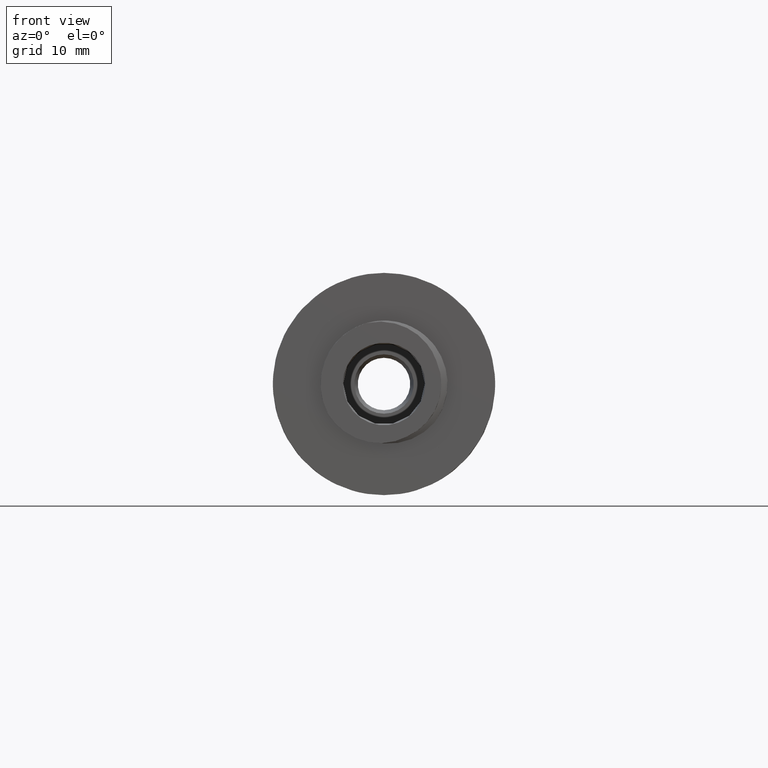
[diagram: clean part render]
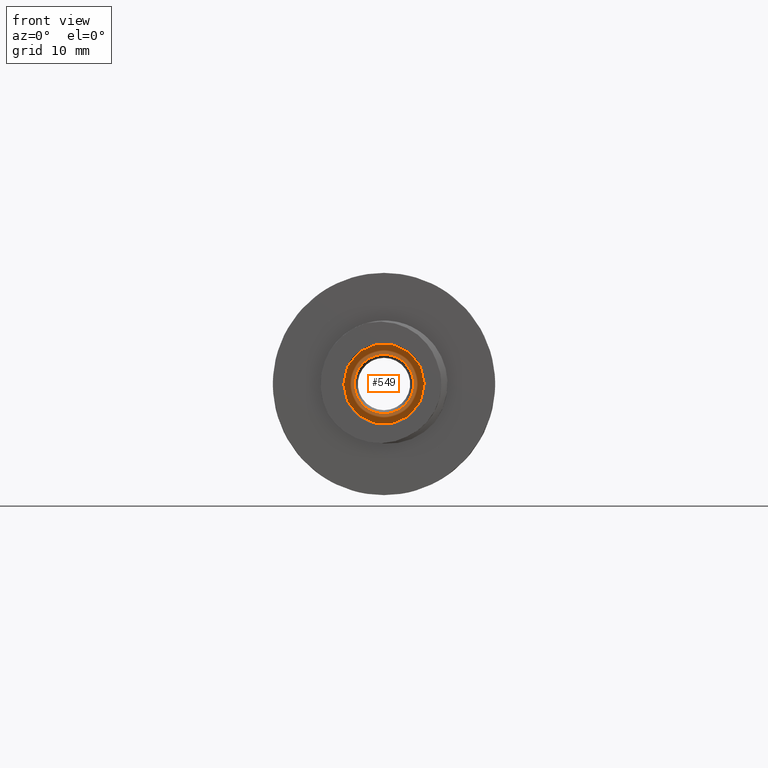
[diagram: same view with one face highlighted and labeled with its STEP entity id]
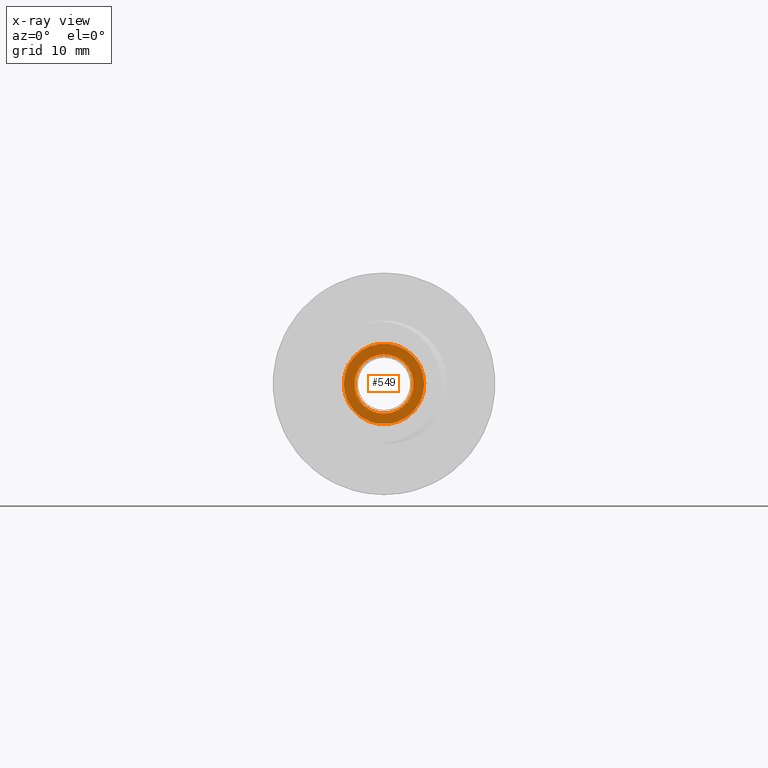
[diagram: x-ray of the same camera — body ghosted, the highlighted face saturated]
A machine part, front view. The second image highlights one B-rep face of the part: STEP entity #549.
The next image is the same camera in x-ray: the body ghosted, the highlighted face saturated — about 2% of this face is hidden behind the body in this view.
In plain terms, the highlighted planar face has unit normal (0, 1, 0).
Its self-contained STEP definition (entity closure, byte-faithful):
#549 = ADVANCED_FACE ( 'NONE', ( #5106, #5068 ), #5083, .F. ) ;
#2148 = EDGE_LOOP ( 'NONE', ( #19834, #19774 ) ) ;
#2151 = EDGE_LOOP ( 'NONE', ( #19826, #19832 ) ) ;
#5063 = DIRECTION ( 'NONE',  ( 0.0000000000000000000, -0.0000000000000000000, 1.000000000000000000 ) ) ;
#5068 = FACE_OUTER_BOUND ( 'NONE', #2151, .T. ) ;
#5083 = PLANE ( 'NONE',  #17273 ) ;
#5086 = CARTESIAN_POINT ( 'NONE',  ( 8.673617379884035500E-016, 8.133721623965065800, 0.0000000000000000000 ) ) ;
#5100 = DIRECTION ( 'NONE',  ( 0.0000000000000000000, 1.000000000000000000, 0.0000000000000000000 ) ) ;
#5106 = FACE_BOUND ( 'NONE', #2148, .T. ) ;
#10246 = AXIS2_PLACEMENT_3D ( 'NONE', #10947, #10967, #10964 ) ;
#10263 = CIRCLE ( 'NONE', #10271, 3.799999999999831100 ) ;
#10271 = AXIS2_PLACEMENT_3D ( 'NONE', #10931, #10954, #10960 ) ;
#10273 = CIRCLE ( 'NONE', #10246, 2.805813100756817200 ) ;
#10417 = CIRCLE ( 'NONE', #10433, 3.799999999999831100 ) ;
#10433 = AXIS2_PLACEMENT_3D ( 'NONE', #11784, #11785, #11786 ) ;
#10442 = AXIS2_PLACEMENT_3D ( 'NONE', #11888, #11870, #11893 ) ;
#10460 = CIRCLE ( 'NONE', #10442, 2.805813100756817200 ) ;
#10931 = CARTESIAN_POINT ( 'NONE',  ( -5.070800296857850500E-015, 8.133721624005829700, 0.0000000000000000000 ) ) ;
#10947 = CARTESIAN_POINT ( 'NONE',  ( 8.673617379884035500E-016, 8.133721623948986200, 0.0000000000000000000 ) ) ;
#10954 = DIRECTION ( 'NONE',  ( -2.224004456379627500E-016, 1.000000000000000000, -0.0000000000000000000 ) ) ;
#10960 = DIRECTION ( 'NONE',  ( 1.000000000000000000, 0.0000000000000000000, 0.0000000000000000000 ) ) ;
#10964 = DIRECTION ( 'NONE',  ( 0.0000000000000000000, 0.0000000000000000000, -1.000000000000000000 ) ) ;
#10967 = DIRECTION ( 'NONE',  ( -0.0000000000000000000, 1.000000000000000000, -0.0000000000000000000 ) ) ;
#11784 = CARTESIAN_POINT ( 'NONE',  ( -5.070800296857850500E-015, 8.133721624005829700, 0.0000000000000000000 ) ) ;
#11785 = DIRECTION ( 'NONE',  ( -2.224004456379627500E-016, 1.000000000000000000, -0.0000000000000000000 ) ) ;
#11786 = DIRECTION ( 'NONE',  ( 1.000000000000000000, 0.0000000000000000000, 0.0000000000000000000 ) ) ;
#11870 = DIRECTION ( 'NONE',  ( -0.0000000000000000000, 1.000000000000000000, -0.0000000000000000000 ) ) ;
#11888 = CARTESIAN_POINT ( 'NONE',  ( 8.673617379884035500E-016, 8.133721623948986200, 0.0000000000000000000 ) ) ;
#11893 = DIRECTION ( 'NONE',  ( 0.0000000000000000000, 0.0000000000000000000, -1.000000000000000000 ) ) ;
#16653 = CARTESIAN_POINT ( 'NONE',  ( 1.210974741273158200E-015, 8.133721623948986200, 2.805813100756817200 ) ) ;
#16728 = CARTESIAN_POINT ( 'NONE',  ( 3.799999999999825700, 8.133721624005829700, 0.0000000000000000000 ) ) ;
#16766 = CARTESIAN_POINT ( 'NONE',  ( 8.673617379884035500E-016, 8.133721623948986200, -2.805813100756817200 ) ) ;
#16807 = CARTESIAN_POINT ( 'NONE',  ( -3.799999999999836000, 8.133721624005829700, 4.714890176718320200E-016 ) ) ;
#17273 = AXIS2_PLACEMENT_3D ( 'NONE', #5086, #5100, #5063 ) ;
#17579 = EDGE_CURVE ( 'NONE', #20377, #20427, #10263, .T. ) ;
#17582 = EDGE_CURVE ( 'NONE', #20371, #20337, #10273, .T. ) ;
#18267 = EDGE_CURVE ( 'NONE', #20427, #20377, #10417, .T. ) ;
#18278 = EDGE_CURVE ( 'NONE', #20337, #20371, #10460, .T. ) ;
#19774 = ORIENTED_EDGE ( 'NONE', *, *, #18278, .T. ) ;
#19826 = ORIENTED_EDGE ( 'NONE', *, *, #17579, .F. ) ;
#19832 = ORIENTED_EDGE ( 'NONE', *, *, #18267, .F. ) ;
#19834 = ORIENTED_EDGE ( 'NONE', *, *, #17582, .T. ) ;
#20337 = VERTEX_POINT ( 'NONE', #16653 ) ;
#20371 = VERTEX_POINT ( 'NONE', #16766 ) ;
#20377 = VERTEX_POINT ( 'NONE', #16728 ) ;
#20427 = VERTEX_POINT ( 'NONE', #16807 ) ;